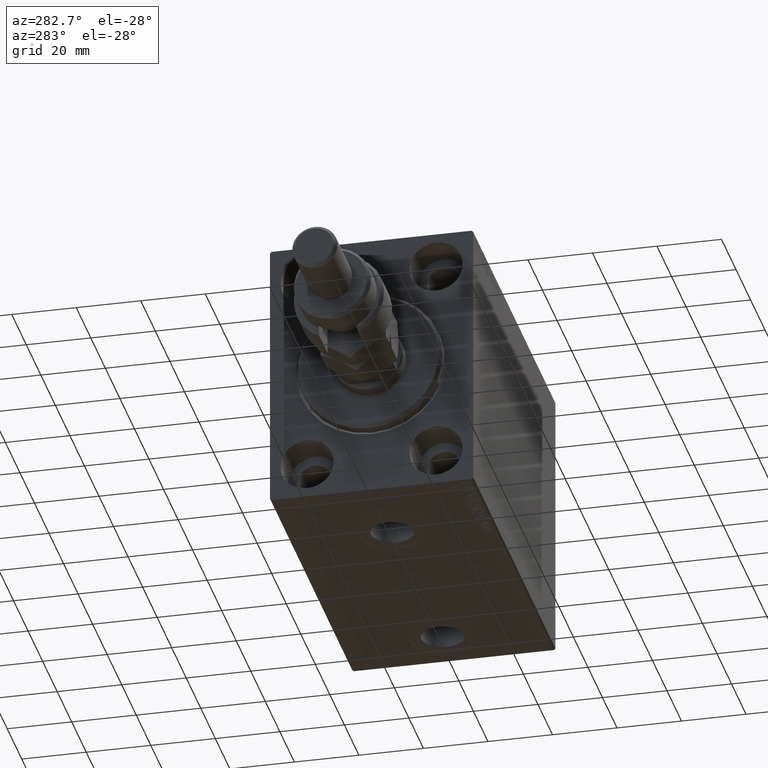
[diagram: clean part render]
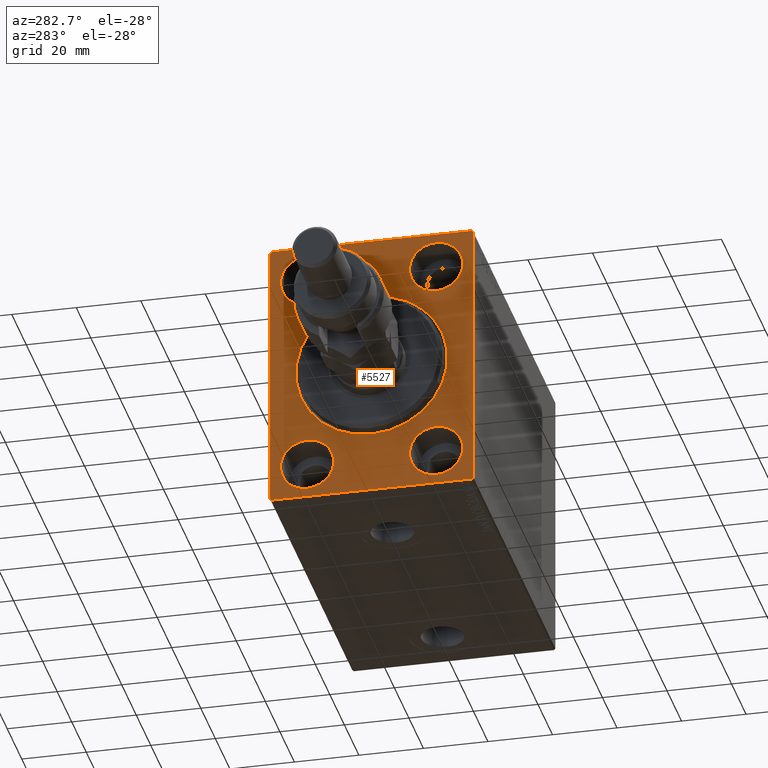
[diagram: same view with one face highlighted and labeled with its STEP entity id]
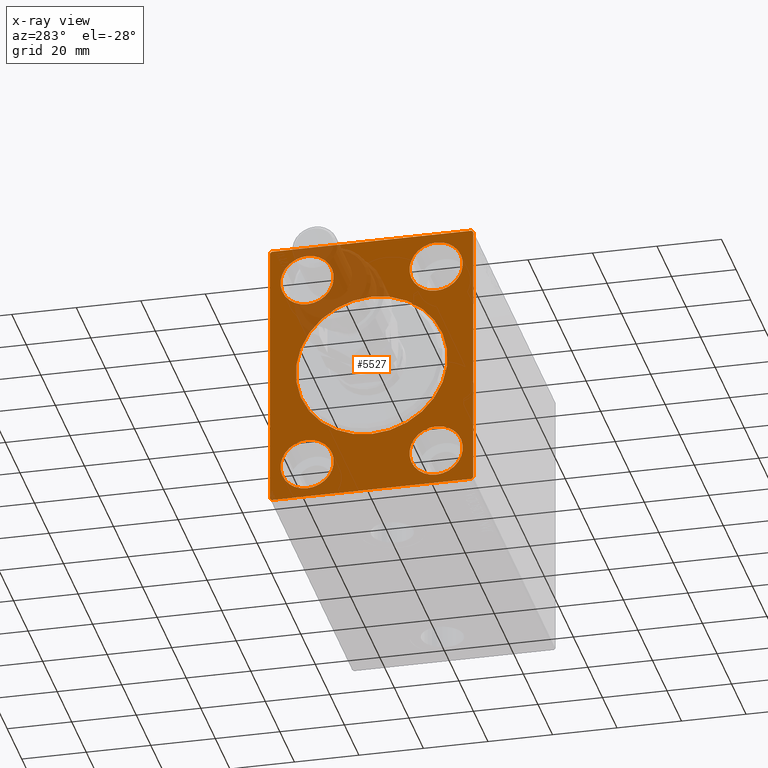
[diagram: x-ray of the same camera — body ghosted, the highlighted face saturated]
A machine part, auxiliary view. The second image highlights one B-rep face of the part: STEP entity #5527.
The next image is the same camera in x-ray: the body ghosted, the highlighted face saturated — about 13% of this face is hidden behind the body in this view.
In plain terms, the highlighted planar face has unit normal (1, 0, 0).
Its self-contained STEP definition (entity closure, byte-faithful):
#224 = EDGE_CURVE ( 'NONE', #32216, #23039, #14100, .T. ) ;
#226 = CARTESIAN_POINT ( 'NONE',  ( 0.000000000000000000, -19.99999999999999645, 31.50000000000000000 ) ) ;
#319 = VERTEX_POINT ( 'NONE', #19895 ) ;
#498 = ORIENTED_EDGE ( 'NONE', *, *, #4814, .T. ) ;
#591 = VECTOR ( 'NONE', #13213, 1000.000000000000114 ) ;
#1579 = CARTESIAN_POINT ( 'NONE',  ( 0.000000000000000000, -31.50000000000000000, -42.50000000000000711 ) ) ;
#1708 = AXIS2_PLACEMENT_3D ( 'NONE', #26733, #22101, #3671 ) ;
#1928 = EDGE_CURVE ( 'NONE', #23788, #40575, #41364, .T. ) ;
#2231 = DIRECTION ( 'NONE',  ( 0.000000000000000000, 0.000000000000000000, 1.000000000000000000 ) ) ;
#2391 = CIRCLE ( 'NONE', #13236, 8.249999999999992895 ) ;
#2411 = VECTOR ( 'NONE', #17717, 1000.000000000000114 ) ;
#2432 = LINE ( 'NONE', #47095, #16831 ) ;
#2597 = CARTESIAN_POINT ( 'NONE',  ( 0.000000000000000000, -19.99999999999999645, 23.25000000000000355 ) ) ;
#2868 = DIRECTION ( 'NONE',  ( 0.000000000000000000, 0.000000000000000000, -1.000000000000000000 ) ) ;
#3302 = EDGE_LOOP ( 'NONE', ( #37825, #35618 ) ) ;
#3671 = DIRECTION ( 'NONE',  ( 0.000000000000000000, 0.000000000000000000, 1.000000000000000000 ) ) ;
#3681 = ORIENTED_EDGE ( 'NONE', *, *, #13235, .F. ) ;
#4513 = CARTESIAN_POINT ( 'NONE',  ( 0.000000000000000000, -31.50000000000000000, 42.49999999999999289 ) ) ;
#4592 = CARTESIAN_POINT ( 'NONE',  ( 0.000000000000000000, 19.99999999999999645, -39.74999999999999289 ) ) ;
#4760 = CARTESIAN_POINT ( 'NONE',  ( 0.000000000000000000, 2.877919977996283870E-15, -23.50000000000003197 ) ) ;
#4807 = CARTESIAN_POINT ( 'NONE',  ( 0.000000000000000000, 31.50000000000001421, -41.99999999999999289 ) ) ;
#4814 = EDGE_CURVE ( 'NONE', #30381, #46270, #20413, .T. ) ;
#5412 = AXIS2_PLACEMENT_3D ( 'NONE', #18124, #21286, #24711 ) ;
#5527 = ADVANCED_FACE ( 'NONE', ( #9556, #31668, #31907, #43060, #5914, #16352 ), #20232, .F. ) ;
#5641 = CARTESIAN_POINT ( 'NONE',  ( 0.000000000000000000, 31.50000000000000000, 42.50000000000000711 ) ) ;
#5737 = CARTESIAN_POINT ( 'NONE',  ( 0.000000000000000000, -30.99999999999998579, 42.49999999999999289 ) ) ;
#5906 = CARTESIAN_POINT ( 'NONE',  ( 0.000000000000000000, 19.99999999999999645, -31.49999999999999289 ) ) ;
#5914 = FACE_BOUND ( 'NONE', #3302, .T. ) ;
#5929 = CARTESIAN_POINT ( 'NONE',  ( 0.000000000000000000, -31.50000000000000000, 41.99999999999997868 ) ) ;
#6182 = EDGE_CURVE ( 'NONE', #319, #43521, #9864, .T. ) ;
#6586 = EDGE_LOOP ( 'NONE', ( #45051, #9340 ) ) ;
#6840 = EDGE_CURVE ( 'NONE', #23039, #32216, #28826, .T. ) ;
#6882 = ORIENTED_EDGE ( 'NONE', *, *, #10495, .T. ) ;
#8023 = DIRECTION ( 'NONE',  ( -1.000000000000000000, 0.000000000000000000, 0.000000000000000000 ) ) ;
#8793 = DIRECTION ( 'NONE',  ( 0.000000000000000000, -1.000000000000000000, -2.202823461557850341E-16 ) ) ;
#8825 = AXIS2_PLACEMENT_3D ( 'NONE', #14264, #25919, #2868 ) ;
#9250 = CARTESIAN_POINT ( 'NONE',  ( 0.000000000000000000, -20.00000000000000355, -39.74999999999999289 ) ) ;
#9340 = ORIENTED_EDGE ( 'NONE', *, *, #31424, .F. ) ;
#9556 = FACE_BOUND ( 'NONE', #11289, .T. ) ;
#9756 = LINE ( 'NONE', #5641, #31655 ) ;
#9859 = CARTESIAN_POINT ( 'NONE',  ( 0.000000000000000000, 30.99999999999995737, 42.50000000000000711 ) ) ;
#9864 = LINE ( 'NONE', #24678, #24166 ) ;
#10338 = AXIS2_PLACEMENT_3D ( 'NONE', #226, #15031, #29855 ) ;
#10495 = EDGE_CURVE ( 'NONE', #22938, #14633, #39652, .T. ) ;
#11289 = EDGE_LOOP ( 'NONE', ( #6882, #27760 ) ) ;
#12356 = VERTEX_POINT ( 'NONE', #44475 ) ;
#12365 = CIRCLE ( 'NONE', #5412, 8.249999999999992895 ) ;
#12466 = AXIS2_PLACEMENT_3D ( 'NONE', #39415, #35059, #42582 ) ;
#13082 = CARTESIAN_POINT ( 'NONE',  ( 0.000000000000000000, 20.00000000000000355, 31.50000000000000000 ) ) ;
#13213 = DIRECTION ( 'NONE',  ( -0.000000000000000000, 0.7071067811865474617, 0.7071067811865474617 ) ) ;
#13235 = EDGE_CURVE ( 'NONE', #26718, #23647, #45205, .T. ) ;
#13236 = AXIS2_PLACEMENT_3D ( 'NONE', #40449, #25885, #14705 ) ;
#14100 = CIRCLE ( 'NONE', #1708, 8.250000000000000000 ) ;
#14264 = CARTESIAN_POINT ( 'NONE',  ( 0.000000000000000000, 0.000000000000000000, 0.000000000000000000 ) ) ;
#14577 = VECTOR ( 'NONE', #31197, 1000.000000000000000 ) ;
#14633 = VERTEX_POINT ( 'NONE', #4760 ) ;
#14705 = DIRECTION ( 'NONE',  ( 0.000000000000000000, 0.000000000000000000, 1.000000000000000000 ) ) ;
#14824 = ORIENTED_EDGE ( 'NONE', *, *, #47793, .F. ) ;
#15031 = DIRECTION ( 'NONE',  ( -1.000000000000000000, 0.000000000000000000, 0.000000000000000000 ) ) ;
#15724 = AXIS2_PLACEMENT_3D ( 'NONE', #44460, #8023, #15777 ) ;
#15777 = DIRECTION ( 'NONE',  ( 0.000000000000000000, 0.000000000000000000, 1.000000000000000000 ) ) ;
#16352 = FACE_OUTER_BOUND ( 'NONE', #35680, .T. ) ;
#16396 = AXIS2_PLACEMENT_3D ( 'NONE', #42056, #46663, #2231 ) ;
#16831 = VECTOR ( 'NONE', #32059, 1000.000000000000000 ) ;
#17141 = EDGE_CURVE ( 'NONE', #14633, #22938, #31342, .T. ) ;
#17223 = VERTEX_POINT ( 'NONE', #37568 ) ;
#17552 = VERTEX_POINT ( 'NONE', #46087 ) ;
#17672 = CARTESIAN_POINT ( 'NONE',  ( 0.000000000000000000, -20.00000000000000355, -23.24999999999999289 ) ) ;
#17717 = DIRECTION ( 'NONE',  ( 0.000000000000000000, -0.7071067811865474617, -0.7071067811865474617 ) ) ;
#17770 = DIRECTION ( 'NONE',  ( -1.000000000000000000, 0.000000000000000000, 0.000000000000000000 ) ) ;
#18124 = CARTESIAN_POINT ( 'NONE',  ( 0.000000000000000000, 20.00000000000000355, 31.50000000000000000 ) ) ;
#19057 = EDGE_CURVE ( 'NONE', #23647, #26718, #33717, .T. ) ;
#19155 = CARTESIAN_POINT ( 'NONE',  ( 0.000000000000000000, -19.99999999999999645, 39.74999999999999289 ) ) ;
#19895 = CARTESIAN_POINT ( 'NONE',  ( 0.000000000000000000, -30.99999999999998579, -42.50000000000000711 ) ) ;
#19915 = ORIENTED_EDGE ( 'NONE', *, *, #19057, .F. ) ;
#20227 = CARTESIAN_POINT ( 'NONE',  ( 0.000000000000000000, -31.50000000000000000, 41.99999999999997868 ) ) ;
#20232 = PLANE ( 'NONE',  #12466 ) ;
#20413 = LINE ( 'NONE', #42769, #2411 ) ;
#21286 = DIRECTION ( 'NONE',  ( -1.000000000000000000, 0.000000000000000000, 0.000000000000000000 ) ) ;
#22101 = DIRECTION ( 'NONE',  ( -1.000000000000000000, 0.000000000000000000, 0.000000000000000000 ) ) ;
#22437 = CARTESIAN_POINT ( 'NONE',  ( 0.000000000000000000, 31.00000000000000000, -42.50000000000000711 ) ) ;
#22938 = VERTEX_POINT ( 'NONE', #41509 ) ;
#23039 = VERTEX_POINT ( 'NONE', #17672 ) ;
#23106 = ORIENTED_EDGE ( 'NONE', *, *, #37152, .T. ) ;
#23647 = VERTEX_POINT ( 'NONE', #4592 ) ;
#23788 = VERTEX_POINT ( 'NONE', #19155 ) ;
#23834 = EDGE_CURVE ( 'NONE', #17552, #45892, #47723, .T. ) ;
#24166 = VECTOR ( 'NONE', #27609, 1000.000000000000114 ) ;
#24589 = ORIENTED_EDGE ( 'NONE', *, *, #6182, .T. ) ;
#24673 = DIRECTION ( 'NONE',  ( -0.000000000000000000, 0.7071067811865573427, -0.7071067811865378028 ) ) ;
#24678 = CARTESIAN_POINT ( 'NONE',  ( 0.000000000000000000, -30.99999999999998579, -42.50000000000000711 ) ) ;
#24711 = DIRECTION ( 'NONE',  ( 0.000000000000000000, 0.000000000000000000, 1.000000000000000000 ) ) ;
#25195 = AXIS2_PLACEMENT_3D ( 'NONE', #5906, #17770, #47417 ) ;
#25389 = CARTESIAN_POINT ( 'NONE',  ( 0.000000000000000000, 19.99999999999999645, -23.24999999999999289 ) ) ;
#25885 = DIRECTION ( 'NONE',  ( -1.000000000000000000, 0.000000000000000000, 0.000000000000000000 ) ) ;
#25919 = DIRECTION ( 'NONE',  ( 1.000000000000000000, 0.000000000000000000, 0.000000000000000000 ) ) ;
#26718 = VERTEX_POINT ( 'NONE', #25389 ) ;
#26733 = CARTESIAN_POINT ( 'NONE',  ( 0.000000000000000000, -20.00000000000000355, -31.49999999999999289 ) ) ;
#26874 = VECTOR ( 'NONE', #24673, 1000.000000000000000 ) ;
#27609 = DIRECTION ( 'NONE',  ( -0.000000000000000000, -0.7071067811865474617, 0.7071067811865474617 ) ) ;
#27760 = ORIENTED_EDGE ( 'NONE', *, *, #17141, .T. ) ;
#28826 = CIRCLE ( 'NONE', #16396, 8.250000000000000000 ) ;
#29855 = DIRECTION ( 'NONE',  ( 0.000000000000000000, 0.000000000000000000, 1.000000000000000000 ) ) ;
#30381 = VERTEX_POINT ( 'NONE', #4807 ) ;
#31197 = DIRECTION ( 'NONE',  ( 0.000000000000000000, 1.000000000000000000, 0.000000000000000000 ) ) ;
#31342 = CIRCLE ( 'NONE', #8825, 23.50000000000003197 ) ;
#31424 = EDGE_CURVE ( 'NONE', #45892, #17552, #12365, .T. ) ;
#31617 = EDGE_LOOP ( 'NONE', ( #32510, #14824 ) ) ;
#31655 = VECTOR ( 'NONE', #8793, 1000.000000000000000 ) ;
#31668 = FACE_BOUND ( 'NONE', #36814, .T. ) ;
#31693 = VECTOR ( 'NONE', #45315, 1000.000000000000000 ) ;
#31907 = FACE_BOUND ( 'NONE', #31617, .T. ) ;
#32059 = DIRECTION ( 'NONE',  ( 0.000000000000000000, -1.632680918566406300E-16, 1.000000000000000000 ) ) ;
#32216 = VERTEX_POINT ( 'NONE', #9250 ) ;
#32347 = ORIENTED_EDGE ( 'NONE', *, *, #37439, .F. ) ;
#32510 = ORIENTED_EDGE ( 'NONE', *, *, #1928, .F. ) ;
#32699 = VERTEX_POINT ( 'NONE', #5737 ) ;
#33631 = EDGE_CURVE ( 'NONE', #17223, #12356, #39009, .T. ) ;
#33717 = CIRCLE ( 'NONE', #25195, 8.250000000000000000 ) ;
#34168 = ORIENTED_EDGE ( 'NONE', *, *, #33631, .T. ) ;
#34179 = DIRECTION ( 'NONE',  ( 0.000000000000000000, 0.000000000000000000, -1.000000000000000000 ) ) ;
#34201 = AXIS2_PLACEMENT_3D ( 'NONE', #41951, #34413, #34179 ) ;
#34413 = DIRECTION ( 'NONE',  ( 1.000000000000000000, 0.000000000000000000, 0.000000000000000000 ) ) ;
#34827 = LINE ( 'NONE', #1579, #14577 ) ;
#34941 = DIRECTION ( 'NONE',  ( -1.000000000000000000, 0.000000000000000000, 0.000000000000000000 ) ) ;
#35059 = DIRECTION ( 'NONE',  ( 1.000000000000000000, 0.000000000000000000, 0.000000000000000000 ) ) ;
#35544 = ORIENTED_EDGE ( 'NONE', *, *, #35598, .F. ) ;
#35598 = EDGE_CURVE ( 'NONE', #30381, #12356, #2432, .T. ) ;
#35618 = ORIENTED_EDGE ( 'NONE', *, *, #224, .F. ) ;
#35680 = EDGE_LOOP ( 'NONE', ( #43183, #23106, #32347, #34168, #35544, #498, #47079, #24589 ) ) ;
#35836 = CARTESIAN_POINT ( 'NONE',  ( 0.000000000000000000, -31.50000000000000000, -41.99999999999999289 ) ) ;
#36814 = EDGE_LOOP ( 'NONE', ( #3681, #19915 ) ) ;
#37152 = EDGE_CURVE ( 'NONE', #43854, #32699, #38468, .T. ) ;
#37213 = EDGE_CURVE ( 'NONE', #319, #46270, #34827, .T. ) ;
#37439 = EDGE_CURVE ( 'NONE', #17223, #32699, #9756, .T. ) ;
#37568 = CARTESIAN_POINT ( 'NONE',  ( 0.000000000000000000, 30.99999999999995737, 42.50000000000000711 ) ) ;
#37781 = LINE ( 'NONE', #4513, #31693 ) ;
#37825 = ORIENTED_EDGE ( 'NONE', *, *, #6840, .F. ) ;
#38468 = LINE ( 'NONE', #5929, #591 ) ;
#38500 = EDGE_CURVE ( 'NONE', #43854, #43521, #37781, .T. ) ;
#39009 = LINE ( 'NONE', #9859, #26874 ) ;
#39068 = DIRECTION ( 'NONE',  ( 0.000000000000000000, 0.000000000000000000, 1.000000000000000000 ) ) ;
#39193 = AXIS2_PLACEMENT_3D ( 'NONE', #13082, #34941, #39068 ) ;
#39415 = CARTESIAN_POINT ( 'NONE',  ( 0.000000000000000000, 0.000000000000000000, 0.000000000000000000 ) ) ;
#39652 = CIRCLE ( 'NONE', #34201, 23.50000000000003197 ) ;
#40449 = CARTESIAN_POINT ( 'NONE',  ( 0.000000000000000000, -19.99999999999999645, 31.50000000000000000 ) ) ;
#40575 = VERTEX_POINT ( 'NONE', #2597 ) ;
#41364 = CIRCLE ( 'NONE', #10338, 8.249999999999992895 ) ;
#41509 = CARTESIAN_POINT ( 'NONE',  ( 0.000000000000000000, 0.000000000000000000, 23.50000000000003197 ) ) ;
#41951 = CARTESIAN_POINT ( 'NONE',  ( 0.000000000000000000, 0.000000000000000000, 0.000000000000000000 ) ) ;
#42056 = CARTESIAN_POINT ( 'NONE',  ( 0.000000000000000000, -20.00000000000000355, -31.49999999999999289 ) ) ;
#42582 = DIRECTION ( 'NONE',  ( 0.000000000000000000, 0.000000000000000000, -1.000000000000000000 ) ) ;
#42769 = CARTESIAN_POINT ( 'NONE',  ( 0.000000000000000000, 31.50000000000001421, -41.99999999999999289 ) ) ;
#43060 = FACE_BOUND ( 'NONE', #6586, .T. ) ;
#43183 = ORIENTED_EDGE ( 'NONE', *, *, #38500, .F. ) ;
#43521 = VERTEX_POINT ( 'NONE', #35836 ) ;
#43854 = VERTEX_POINT ( 'NONE', #20227 ) ;
#44460 = CARTESIAN_POINT ( 'NONE',  ( 0.000000000000000000, 19.99999999999999645, -31.49999999999999289 ) ) ;
#44475 = CARTESIAN_POINT ( 'NONE',  ( 0.000000000000000000, 31.50000000000000000, 41.99999999999997868 ) ) ;
#44857 = CARTESIAN_POINT ( 'NONE',  ( 0.000000000000000000, 20.00000000000000355, 23.25000000000000355 ) ) ;
#45051 = ORIENTED_EDGE ( 'NONE', *, *, #23834, .F. ) ;
#45205 = CIRCLE ( 'NONE', #15724, 8.250000000000000000 ) ;
#45315 = DIRECTION ( 'NONE',  ( 0.000000000000000000, 0.000000000000000000, -1.000000000000000000 ) ) ;
#45892 = VERTEX_POINT ( 'NONE', #44857 ) ;
#46087 = CARTESIAN_POINT ( 'NONE',  ( 0.000000000000000000, 20.00000000000000355, 39.74999999999999289 ) ) ;
#46270 = VERTEX_POINT ( 'NONE', #22437 ) ;
#46663 = DIRECTION ( 'NONE',  ( -1.000000000000000000, 0.000000000000000000, 0.000000000000000000 ) ) ;
#47079 = ORIENTED_EDGE ( 'NONE', *, *, #37213, .F. ) ;
#47095 = CARTESIAN_POINT ( 'NONE',  ( 0.000000000000000000, 31.50000000000001421, -42.50000000000000711 ) ) ;
#47417 = DIRECTION ( 'NONE',  ( 0.000000000000000000, 0.000000000000000000, 1.000000000000000000 ) ) ;
#47723 = CIRCLE ( 'NONE', #39193, 8.249999999999992895 ) ;
#47793 = EDGE_CURVE ( 'NONE', #40575, #23788, #2391, .T. ) ;